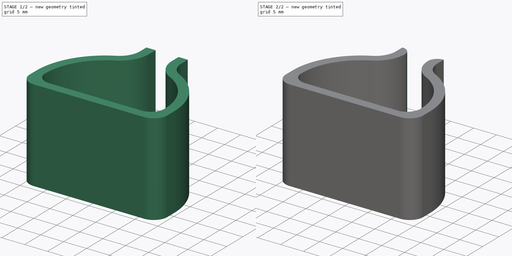
[diagram: build sequence overview — one tinted view per stage of 2, left to right]
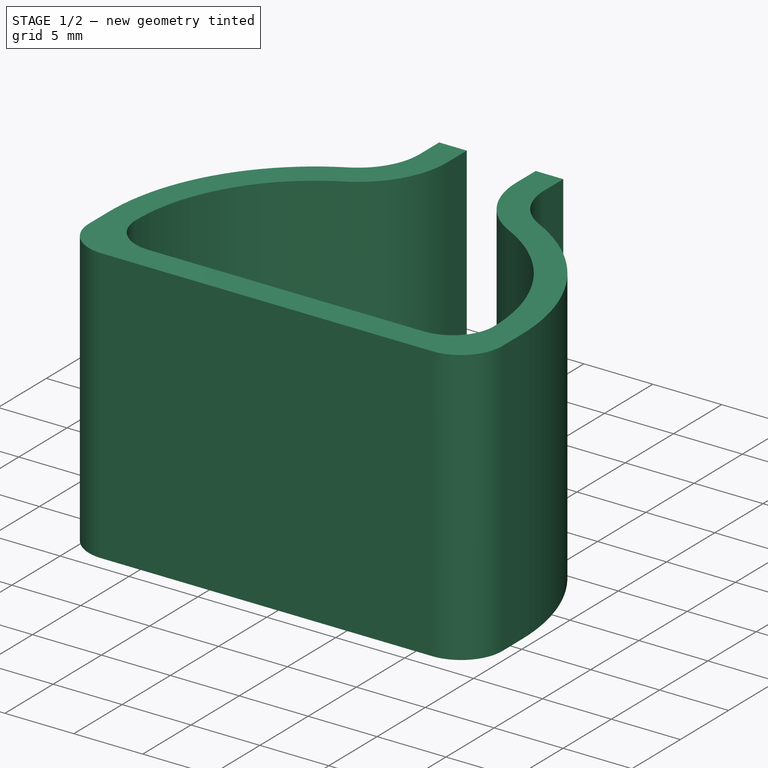
[diagram: stage 1 of 2 — iso view after this stage's code; geometry added in this stage tinted green]
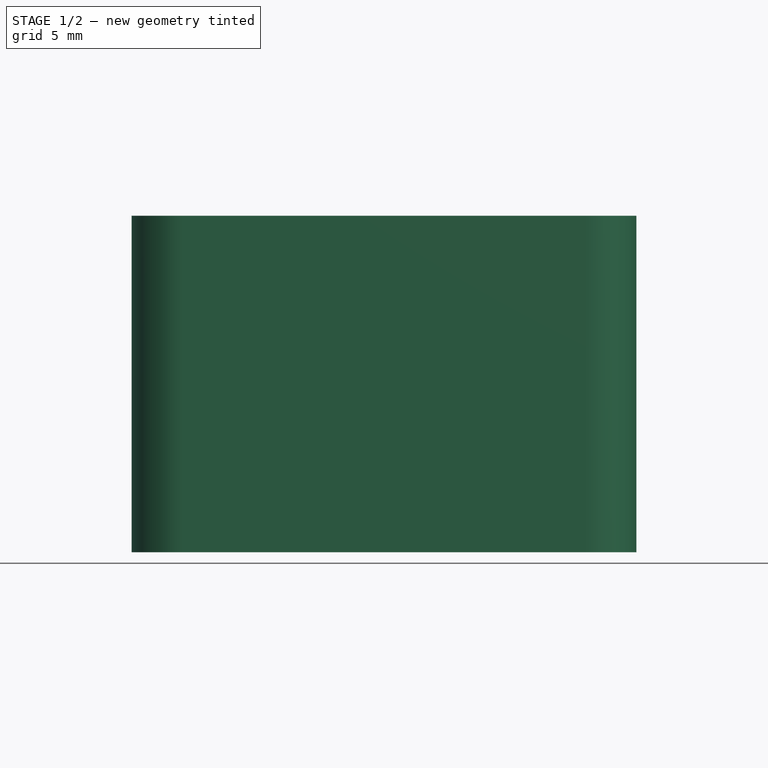
[diagram: stage 1 of 2 — front view after this stage's code; geometry added in this stage tinted green]
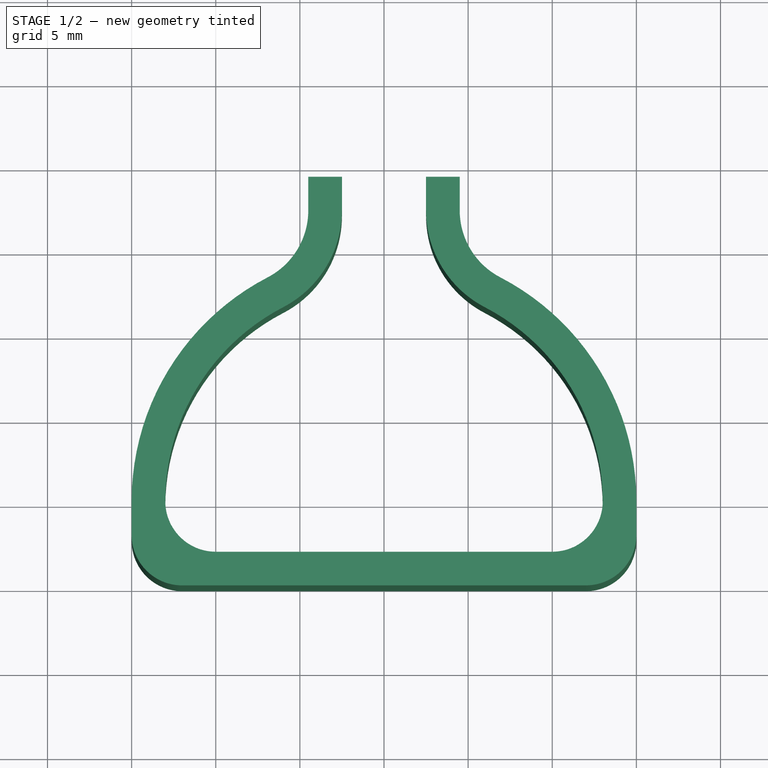
[diagram: stage 1 of 2 — top view after this stage's code; geometry added in this stage tinted green]
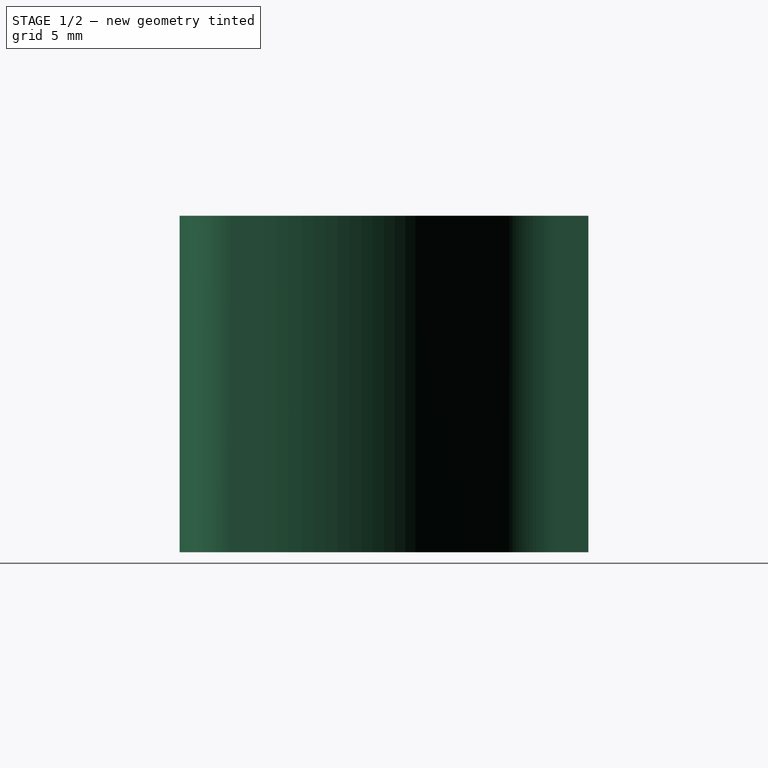
[diagram: stage 1 of 2 — right view after this stage's code; geometry added in this stage tinted green]
FCSTD DOCUMENT  (FreeCAD 0.21R33771 (Git))
Label: suporte-RS485
License: All rights reserved
LicenseURL: https://en.wikipedia.org/wiki/All_rights_reserved
objects: Sketcher::SketchObject×2, PartDesign::Pad×1, PartDesign::Pocket×1, PartDesign::Fillet×1, PartDesign::Body×1
note: 9 computed .brp shape members not serialized (recipe doc carries the construction recipe); baked Part::Feature solids carry a one-line shape summary decoded from their .brp

FEATURE [Sketcher::SketchObject] Sketch
  FullyConstrained = false
  MapMode = 5
  Support = -> [XY_Plane]
  sketch-geometry (31):
    g0: ArcOfCircle CenterX=0 CenterY=0 CenterZ=0 NormalX=0 NormalY=0 NormalZ=1 AngleXU=0 Radius=15 StartAngle=0 EndAngle=3.14159
    g1: LineSegment StartX=-15 StartY=2.2e-15 StartZ=0 EndX=15 EndY=2.2e-15 EndZ=0
    g2: LineSegment StartX=15 StartY=2.2e-15 StartZ=0 EndX=15 EndY=-2 EndZ=0
    g3: LineSegment StartX=12 StartY=-5 StartZ=0 EndX=-12 EndY=-5 EndZ=0
    g4: LineSegment StartX=-15 StartY=-2 StartZ=0 EndX=-15 EndY=2.2e-15 EndZ=0
    g5: ArcOfCircle CenterX=0 CenterY=0 CenterZ=0 NormalX=0 NormalY=0 NormalZ=1 AngleXU=0 Radius=13 StartAngle=0 EndAngle=3.14159
    g6: LineSegment StartX=13 StartY=2.2e-15 StartZ=0 EndX=15 EndY=2.2e-15 EndZ=0
    g7: LineSegment StartX=-10 StartY=-3 StartZ=0 EndX=10 EndY=-3 EndZ=0
    g8: ArcOfCircle CenterX=-8.98576 CenterY=17.2902 CenterZ=0 NormalX=0 NormalY=0 NormalZ=1 AngleXU=0 Radius=6.48576 StartAngle=5.19167 EndAngle=6.28319
    g9: ArcOfCircle CenterX=-8.98576 CenterY=17.2902 CenterZ=0 NormalX=0 NormalY=0 NormalZ=1 AngleXU=0 Radius=4.48576 StartAngle=5.19167 EndAngle=6.28319
    g10: LineSegment StartX=-2.5 StartY=17.2902 StartZ=0 EndX=2.5 EndY=17.2902 EndZ=0
    g11: LineSegment StartX=2.5 StartY=17.2902 StartZ=0 EndX=2.5 EndY=14.7902 EndZ=0
    g12: LineSegment StartX=2.5 StartY=14.7902 StartZ=0 EndX=-2.5 EndY=14.7902 EndZ=0
    g13: LineSegment StartX=-2.5 StartY=14.7902 StartZ=0 EndX=-2.5 EndY=17.2902 EndZ=0
    g14: ArcOfCircle CenterX=8.98576 CenterY=17.2902 CenterZ=0 NormalX=0 NormalY=0 NormalZ=1 AngleXU=0 Radius=4.48576 StartAngle=3.14159 EndAngle=4.2331
    g15: ArcOfCircle CenterX=8.98576 CenterY=17.2902 CenterZ=0 NormalX=0 NormalY=0 NormalZ=1 AngleXU=0 Radius=6.48576 StartAngle=3.14159 EndAngle=4.2331
    g16: ArcOfCircle CenterX=-5.2e-15 CenterY=2.2e-15 CenterZ=0 NormalX=0 NormalY=0 NormalZ=1 AngleXU=0 Radius=15 StartAngle=2.05008 EndAngle=3.14159
    g17: ArcOfCircle CenterX=6e-16 CenterY=-2.27e-14 CenterZ=0 NormalX=0 NormalY=0 NormalZ=1 AngleXU=0 Radius=13 StartAngle=2.05008 EndAngle=3.14159
    g18: ArcOfCircle CenterX=-5.2e-15 CenterY=2.2e-15 CenterZ=0 NormalX=0 NormalY=0 NormalZ=1 AngleXU=0 Radius=15 StartAngle=0 EndAngle=1.09151
    g19: ArcOfCircle CenterX=-2.4e-15 CenterY=-2.06e-14 CenterZ=0 NormalX=0 NormalY=0 NormalZ=1 AngleXU=0 Radius=13 StartAngle=2e-15 EndAngle=1.09151
    g20: LineSegment StartX=-4.5 StartY=19.2902 StartZ=0 EndX=4.5 EndY=19.2902 EndZ=0
    g21: LineSegment StartX=4.5 StartY=19.2902 StartZ=0 EndX=4.5 EndY=17.2902 EndZ=0
    g22: LineSegment StartX=4.5 StartY=17.2902 StartZ=0 EndX=-4.5 EndY=17.2902 EndZ=0
    g23: LineSegment StartX=-4.5 StartY=17.2902 StartZ=0 EndX=-4.5 EndY=19.2902 EndZ=0
    g24: LineSegment StartX=-2.5 StartY=17.2902 StartZ=0 EndX=2.5 EndY=17.2902 EndZ=0
    g25: ArcOfCircle CenterX=-12 CenterY=-2 CenterZ=0 NormalX=0 NormalY=0 NormalZ=1 AngleXU=0 Radius=3 StartAngle=3.14159 EndAngle=4.71239
    g26: ArcOfCircle CenterX=12 CenterY=-2 CenterZ=0 NormalX=0 NormalY=0 NormalZ=1 AngleXU=0 Radius=3 StartAngle=4.71239 EndAngle=6.28319
    g27: ArcOfCircle CenterX=-10 CenterY=-4e-16 CenterZ=0 NormalX=0 NormalY=0 NormalZ=1 AngleXU=0 Radius=3 StartAngle=3.14159 EndAngle=4.71239
    g28: ArcOfCircle CenterX=10 CenterY=-5e-16 CenterZ=0 NormalX=0 NormalY=0 NormalZ=1 AngleXU=0 Radius=3 StartAngle=4.71239 EndAngle=6.28319
    g29: LineSegment StartX=-10 StartY=-3 StartZ=0 EndX=-10 EndY=-5 EndZ=0
    g30: LineSegment StartX=13 StartY=6.8e-15 StartZ=0 EndX=15 EndY=0 EndZ=0
  constraints (83):
    c: Coincident(g0,g-1)
    c: Coincident(g1,g2)
    c: Coincident(g4,g1)
    c: Horizontal(g1)
    c: Horizontal(g3)
    c: Vertical(g2)
    c: Vertical(g4)
    c: PointOnObject(g1,g-1)
    c: Diameter(g0) = 30
    c: Coincident(g0,g1)
    c: Coincident(g0,g1)
    c: Coincident(g5,g0)
    c: Coincident(g6,g5)
    c: Coincident(g6,g0)
    c: Equal(g6,g2)
    c: Horizontal(g6)
    c: Coincident(g9,g8)
    c: Coincident(g10,g11)
    c: Coincident(g11,g12)
    c: Coincident(g12,g13)
    c: Coincident(g13,g10)
    c: Horizontal(g12)
    c: Vertical(g11)
    c: Vertical(g13)
    c: Coincident(g8,g10)
    c: Symmetric(g8,g10,g-2)
    c: Tangent(g8,g5) = 1.5708
    c: Tangent(g9,g0) = 1.5708
    c: Horizontal(g9,g8)
    c: DistanceX(g10,g10) = 5
    c: PointOnObject(g12,g0)
    c: DistanceY(g11,g11) = 2.5
    c: Coincident(g15,g14)
    c: Coincident(g15,g10)
    c: Horizontal(g14,g15)
    c: Tangent(g15,g5) = 1.5708
    c: Tangent(g14,g0) = 1.5708
    c: Coincident(g17,g8)
    c: Coincident(g16,g9)
    c: Coincident(g16,g4)
    c: Horizontal(g7)
    c: Coincident(g18,g16)
    c: Coincident(g18,g2)
    c: Coincident(g18,g14)
    c: Equal(g17,g5)
    c: Tangent(g15,g11)
    c: Tangent(g8,g13)
    c: Equal(g19,g17)
    c: Coincident(g19,g15)
    c: Coincident(g20,g21)
    c: Coincident(g21,g22)
    c: Coincident(g22,g23)
    c: Coincident(g23,g20)
    c: Horizontal(g20)
    c: Vertical(g21)
    c: Vertical(g23)
    c: Coincident(g22,g9)
    c: Coincident(g21,g14)
    c: Equal(g23,g4)
    c: Coincident(g24,g8)
    c: Coincident(g24,g15)
    c: Tangent(g3,g25) = 1.5708
    c: Tangent(g4,g25) = 1.5708
    c: Tangent(g2,g26) = 1.5708
    c: Tangent(g3,g26) = 1.5708
    c: Equal(g26,g25)
    c: Radius(g25) = 3
    c: Tangent(g7,g27) = -1.5708
    c: Tangent(g17,g27) = -1.5708
    c: Tangent(g7,g28) = -1.5708
    c: Tangent(g19,g28) = -1.5708
    c: Equal(g28,g26)
    c: PointOnObject(g5,g17)
    c: PointOnObject(g5,g19)
    c: Equal(g28,g27)
    c: Coincident(g29,g7)
    c: PointOnObject(g29,g3)
    c: Vertical(g29)
    c: Coincident(g30,g19)
    c: PointOnObject(g30,g2)
    c: Equal(g30,g29)
    c: PointOnObject(g30,g-1)
    c: DistanceX(g19,g2) = 2
FEATURE [PartDesign::Pad] Pad
  Direction = (0,0,1)
  Length = 20
  Length2 = 10
  Profile = -> Sketch
  ReferenceAxis = -> Sketch [N_Axis]
  Type = 0
FEATURE [Sketcher::SketchObject] Sketch001
  ExternalGeometry = -> [Pad]
  FullyConstrained = true
  MapMode = 5
  Placement = pos=(0,0,20) rot=(0,0,1;0rad)
  Support = -> [Pad]
  sketch-geometry (4):
    g0: LineSegment StartX=2.5 StartY=17.2902 StartZ=0 EndX=-2.5 EndY=17.2902 EndZ=0
    g1: LineSegment StartX=-2.5 StartY=17.2902 StartZ=0 EndX=-2.5 EndY=19.2902 EndZ=0
    g2: LineSegment StartX=-2.5 StartY=19.2902 StartZ=0 EndX=2.5 EndY=19.2902 EndZ=0
    g3: LineSegment StartX=2.5 StartY=19.2902 StartZ=0 EndX=2.5 EndY=17.2902 EndZ=0
  constraints (11):
    c: Coincident(g0,g1)
    c: Coincident(g1,g2)
    c: Coincident(g2,g3)
    c: Coincident(g3,g0)
    c: Horizontal(g0)
    c: Horizontal(g2)
    c: Vertical(g1)
    c: Vertical(g3)
    c: Coincident(g0,g-3)
    c: PointOnObject(g1,g-4)
    c: PointOnObject(g-3,g1)
FEATURE [PartDesign::Pocket] Pocket
  BaseFeature = -> Pad
  Direction = (0,0,-1)
  Length = 5
  Length2 = 5
  Profile = -> Sketch001
  ReferenceAxis = -> Sketch001 [N_Axis]
  Type = 1
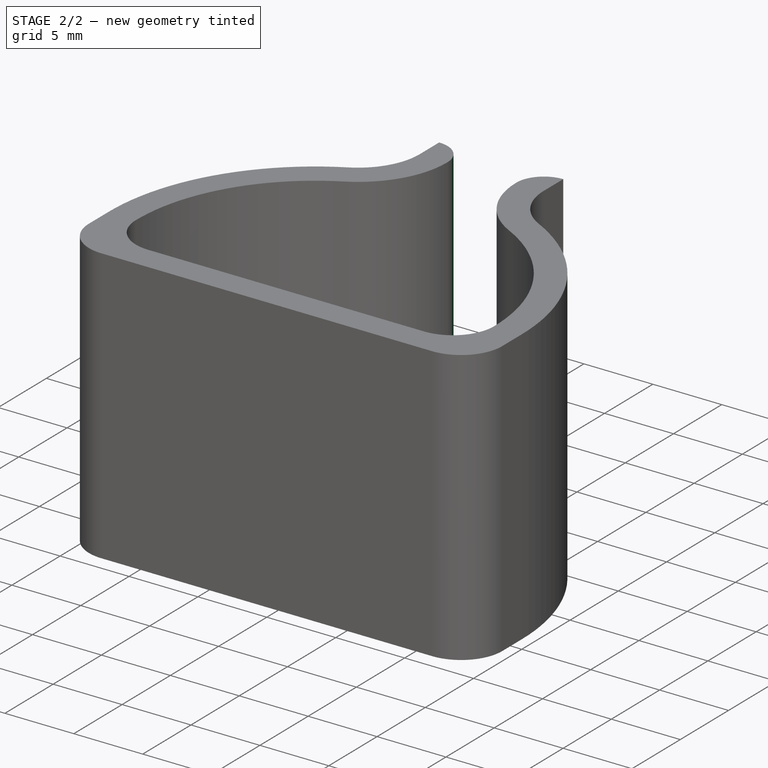
[diagram: stage 2 of 2 — iso view after this stage's code; geometry added in this stage tinted green]
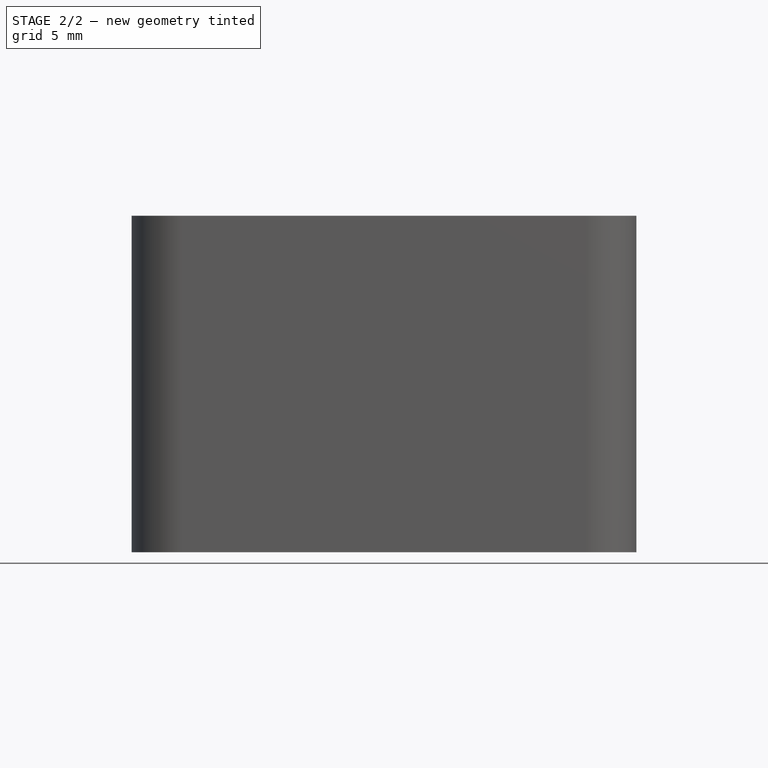
[diagram: stage 2 of 2 — front view after this stage's code; geometry added in this stage tinted green]
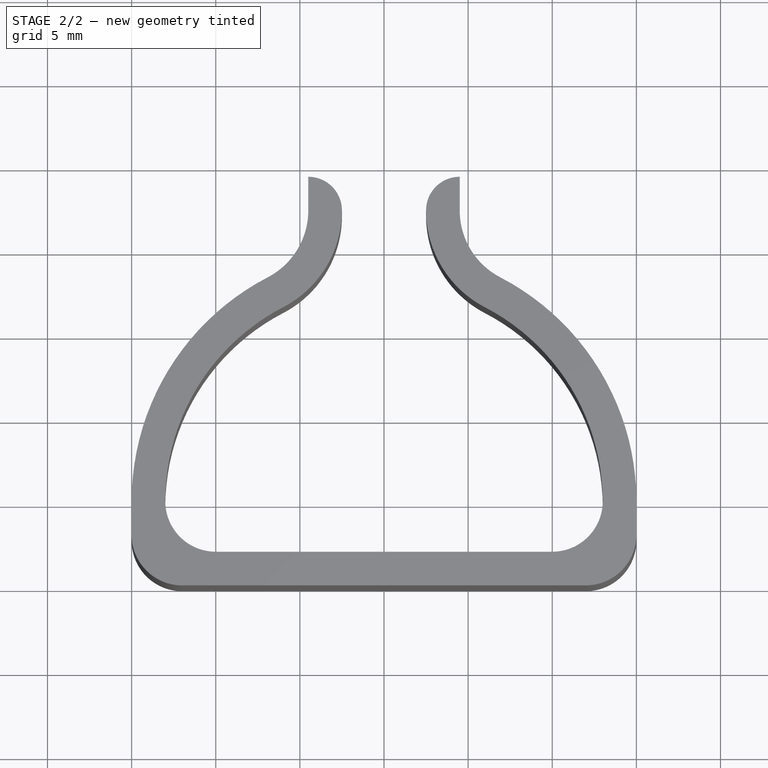
[diagram: stage 2 of 2 — top view after this stage's code; geometry added in this stage tinted green]
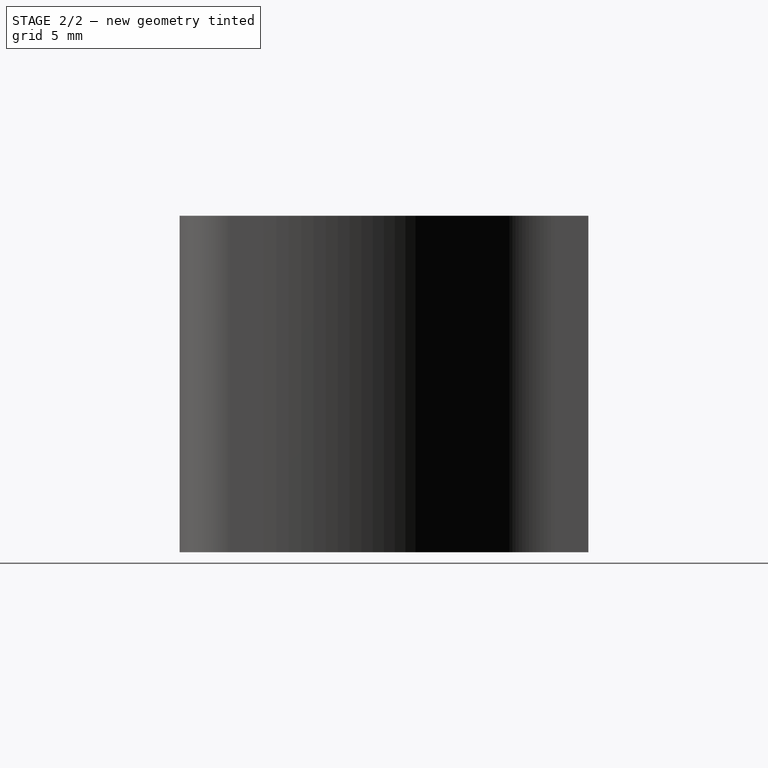
[diagram: stage 2 of 2 — right view after this stage's code; geometry added in this stage tinted green]
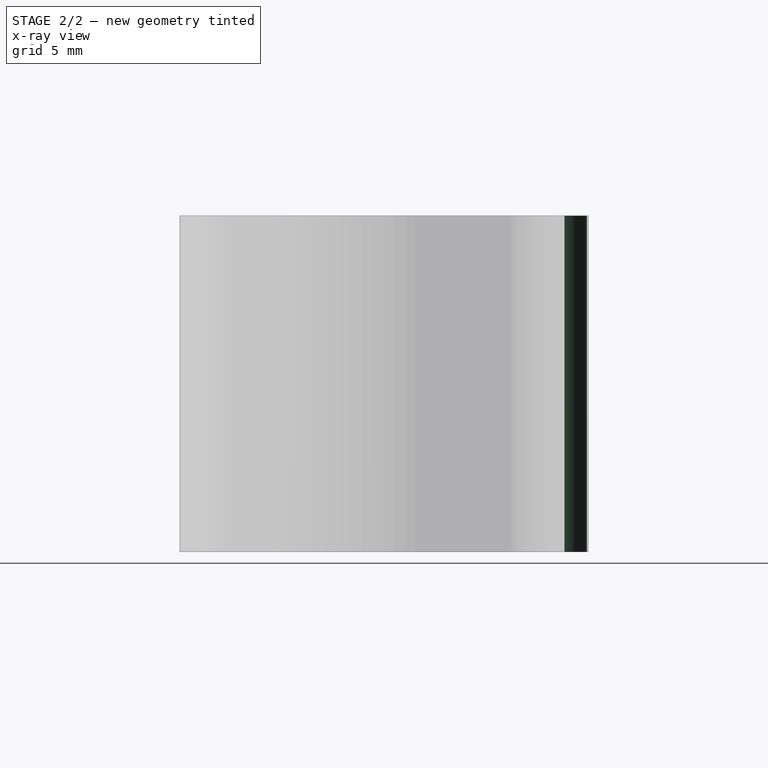
[diagram: stage 2 of 2 — x-ray composite at the right view; earlier geometry ghosted, this stage's added geometry solid]
FEATURE [PartDesign::Fillet] Fillet
  Base = -> Pocket [Edge50,Edge59]
  BaseFeature = -> Pocket
  Radius = 1.9999
  SupportTransform = false
  UseAllEdges = false
FEATURE [PartDesign::Body] Body
  Group = -> [Sketch,Pad,Sketch001,Pocket,Fillet]
  Origin = -> Origin
  Tip = -> Fillet
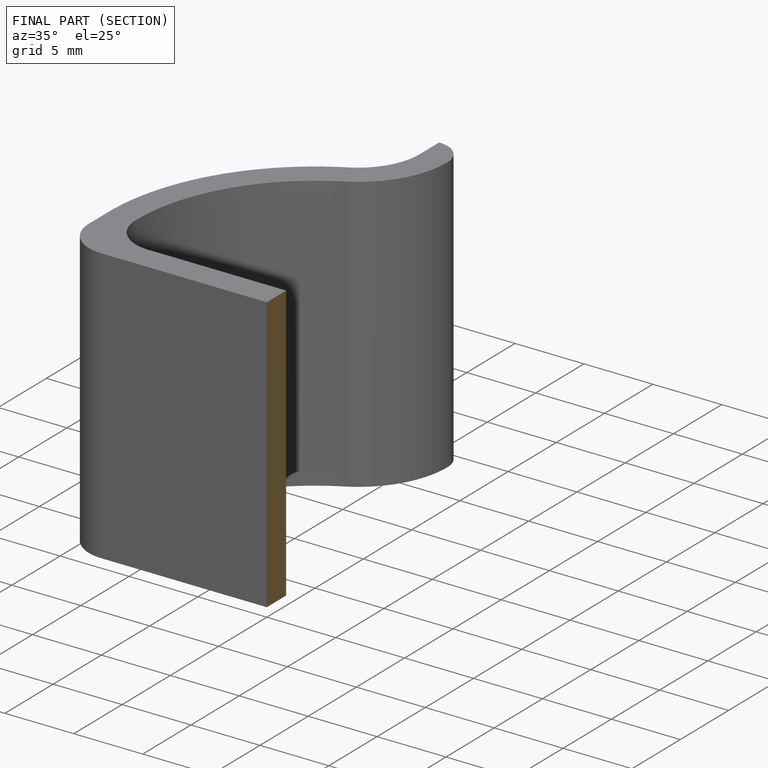
[diagram: finished part — half-section view (interior)]
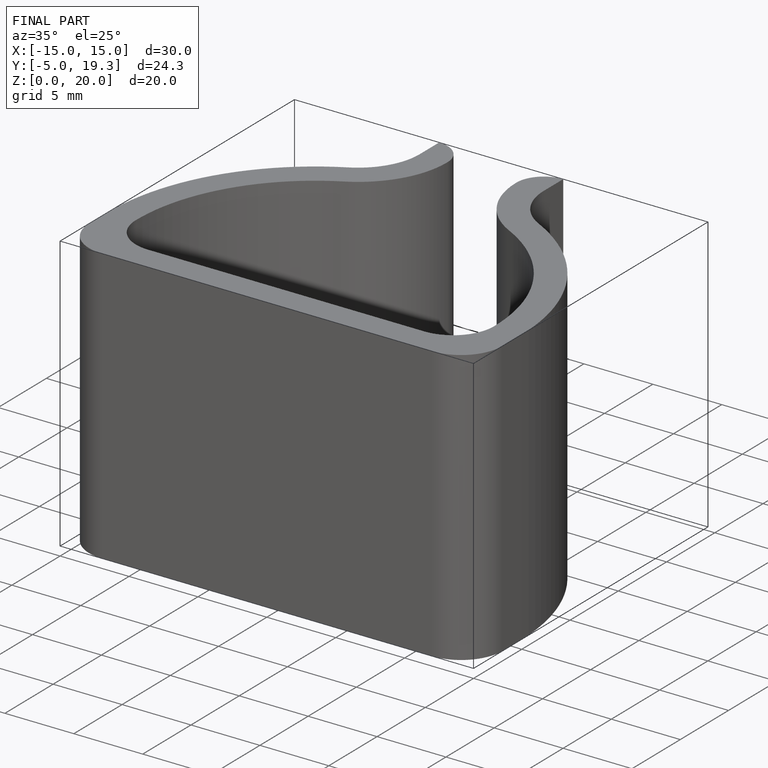
[diagram: finished part — iso view with bounding-box wireframe]
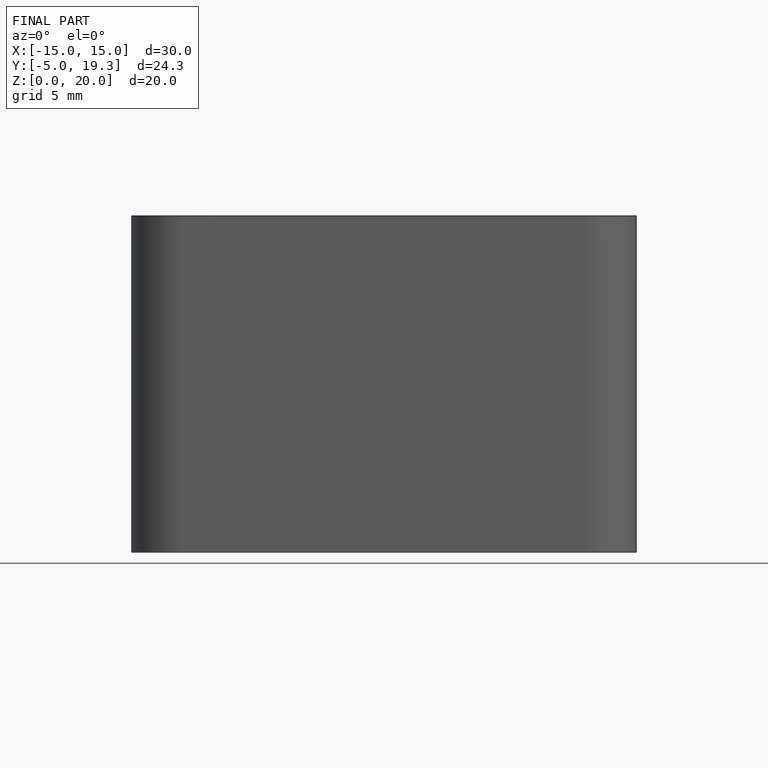
[diagram: finished part — front view with bounding-box wireframe]
